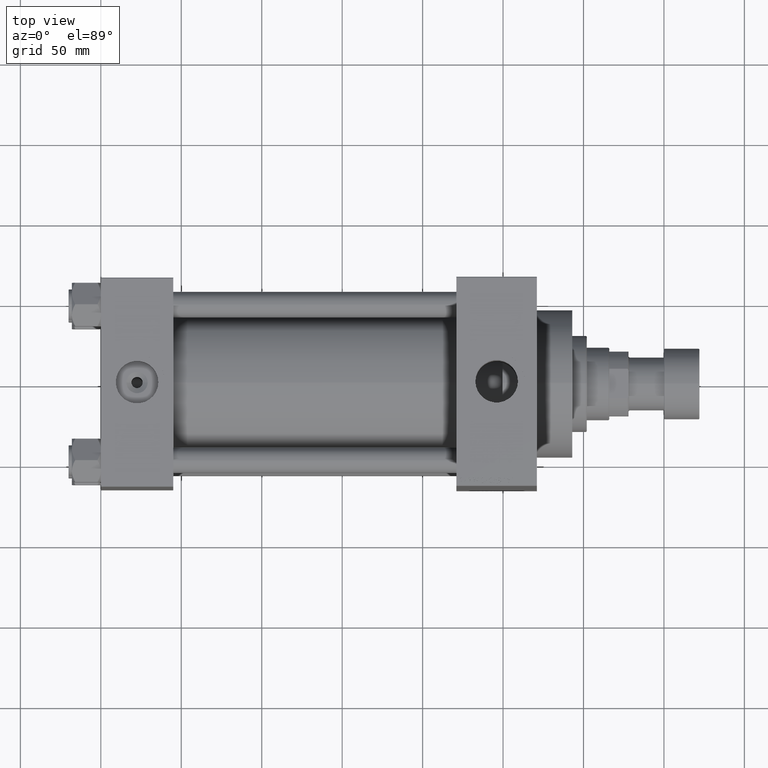
[diagram: clean part render]
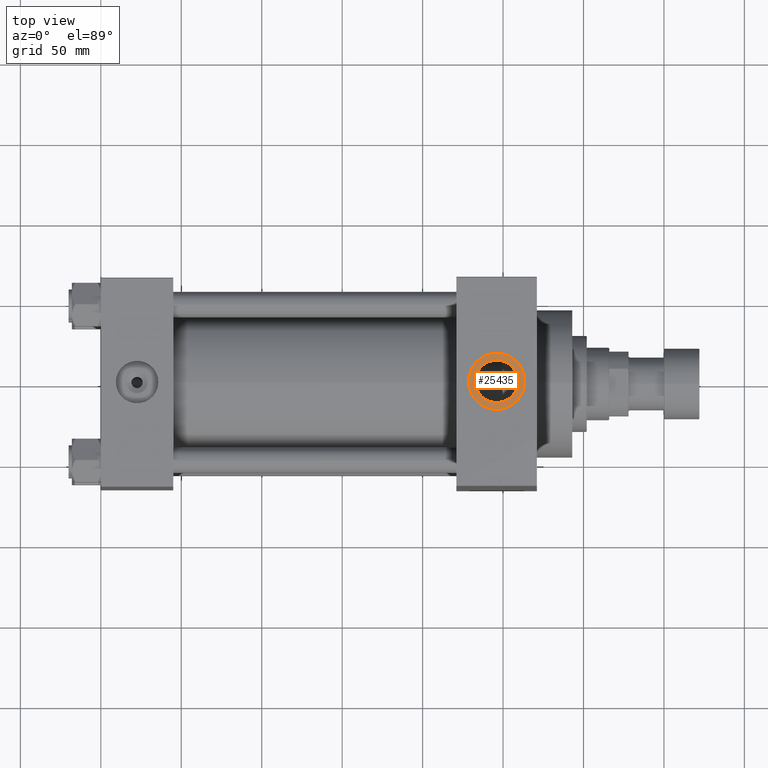
[diagram: same view with one face highlighted and labeled with its STEP entity id]
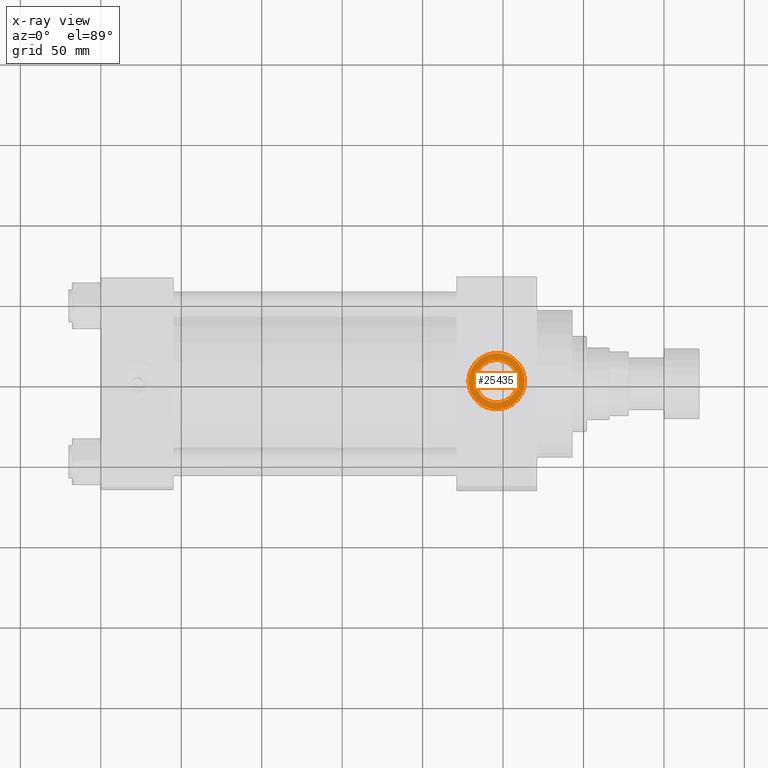
[diagram: x-ray of the same camera — body ghosted, the highlighted face saturated]
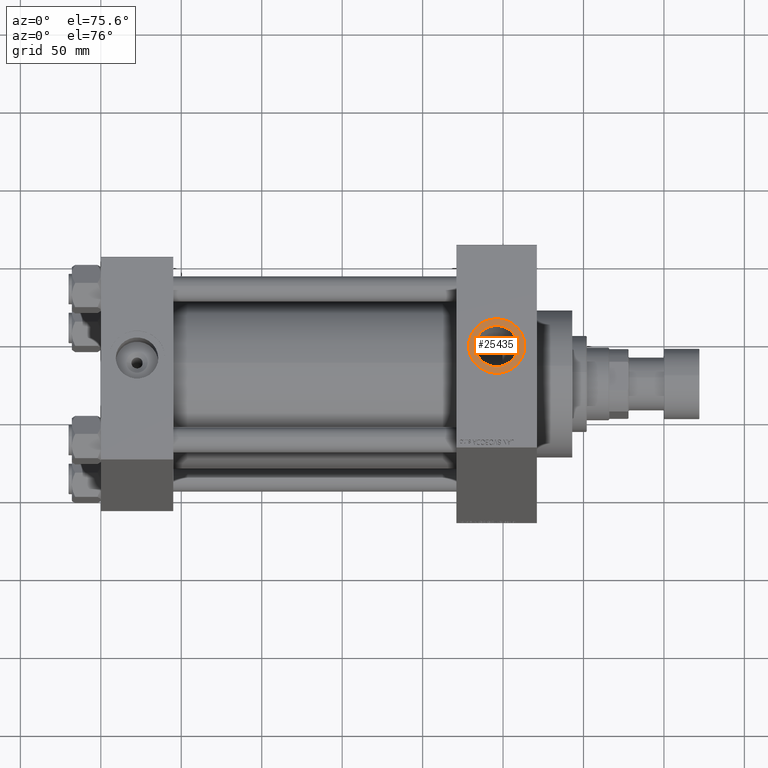
[diagram: same view with one face highlighted and labeled with its STEP entity id]
A machine part, top view. The second image highlights one B-rep face of the part: STEP entity #25435.
The next image is the same camera in x-ray: the body ghosted, the highlighted face saturated — about 0% of this face is hidden behind the body in this view.
A second angle (auxiliary view) of the same face is appended — the face is thin or edge-on in the first view.
In plain terms, the highlighted planar face has unit normal (0, 0, 1).
Its self-contained STEP definition (entity closure, byte-faithful):
#192 = DIRECTION ( 'NONE',  ( 1.000000000000000000, 0.000000000000000000, -0.000000000000000000 ) ) ;
#1902 = DIRECTION ( 'NONE',  ( 0.000000000000000000, 0.000000000000000000, 1.000000000000000000 ) ) ;
#2725 = EDGE_CURVE ( 'NONE', #15401, #28151, #6635, .T. ) ;
#4096 = ORIENTED_EDGE ( 'NONE', *, *, #8728, .T. ) ;
#6635 = CIRCLE ( 'NONE', #11401, 13.22000000000000952 ) ;
#6782 = FACE_OUTER_BOUND ( 'NONE', #48067, .T. ) ;
#7407 = CARTESIAN_POINT ( 'NONE',  ( 245.9999999999999432, -1.014146032109517921E-14, 94.79999999999999716 ) ) ;
#8728 = EDGE_CURVE ( 'NONE', #47634, #23483, #30633, .T. ) ;
#10096 = EDGE_CURVE ( 'NONE', #28151, #15401, #43789, .T. ) ;
#10671 = PLANE ( 'NONE',  #11528 ) ;
#11401 = AXIS2_PLACEMENT_3D ( 'NONE', #31337, #24038, #12606 ) ;
#11528 = AXIS2_PLACEMENT_3D ( 'NONE', #29405, #21624, #192 ) ;
#11679 = DIRECTION ( 'NONE',  ( -0.000000000000000000, -0.000000000000000000, -1.000000000000000000 ) ) ;
#12495 = CARTESIAN_POINT ( 'NONE',  ( 232.7799999999999727, -1.014146032109517921E-14, 94.79999999999999716 ) ) ;
#12606 = DIRECTION ( 'NONE',  ( 1.000000000000000000, 0.000000000000000000, 0.000000000000000000 ) ) ;
#13128 = EDGE_LOOP ( 'NONE', ( #13143, #47294 ) ) ;
#13143 = ORIENTED_EDGE ( 'NONE', *, *, #2725, .T. ) ;
#13571 = CARTESIAN_POINT ( 'NONE',  ( 245.9999999999999432, -1.014146032109517921E-14, 94.79999999999999716 ) ) ;
#15401 = VERTEX_POINT ( 'NONE', #12495 ) ;
#15574 = DIRECTION ( 'NONE',  ( 1.000000000000000000, 0.000000000000000000, 0.000000000000000000 ) ) ;
#17309 = CARTESIAN_POINT ( 'NONE',  ( 259.2199999999999704, -8.522477252622383579E-15, 94.79999999999999716 ) ) ;
#18596 = ORIENTED_EDGE ( 'NONE', *, *, #20021, .T. ) ;
#20021 = EDGE_CURVE ( 'NONE', #23483, #47634, #43334, .T. ) ;
#21624 = DIRECTION ( 'NONE',  ( 0.000000000000000000, 0.000000000000000000, 1.000000000000000000 ) ) ;
#23483 = VERTEX_POINT ( 'NONE', #42372 ) ;
#24038 = DIRECTION ( 'NONE',  ( -0.000000000000000000, -0.000000000000000000, -1.000000000000000000 ) ) ;
#25435 = ADVANCED_FACE ( 'NONE', ( #44469, #6782 ), #10671, .T. ) ;
#26030 = CARTESIAN_POINT ( 'NONE',  ( 245.9999999999999432, -1.014146032109517921E-14, 94.79999999999999716 ) ) ;
#28151 = VERTEX_POINT ( 'NONE', #17309 ) ;
#28418 = DIRECTION ( 'NONE',  ( 1.000000000000000000, 0.000000000000000000, 0.000000000000000000 ) ) ;
#29405 = CARTESIAN_POINT ( 'NONE',  ( 245.9999999999999432, -1.014146032109517921E-14, 94.79999999999999716 ) ) ;
#30270 = DIRECTION ( 'NONE',  ( 1.000000000000000000, 0.000000000000000000, 0.000000000000000000 ) ) ;
#30633 = CIRCLE ( 'NONE', #36830, 17.50000000000001421 ) ;
#31337 = CARTESIAN_POINT ( 'NONE',  ( 245.9999999999999432, -1.014146032109517921E-14, 94.79999999999999716 ) ) ;
#33674 = AXIS2_PLACEMENT_3D ( 'NONE', #26030, #11679, #15574 ) ;
#33913 = DIRECTION ( 'NONE',  ( 0.000000000000000000, 0.000000000000000000, 1.000000000000000000 ) ) ;
#36830 = AXIS2_PLACEMENT_3D ( 'NONE', #7407, #33913, #30270 ) ;
#41758 = AXIS2_PLACEMENT_3D ( 'NONE', #13571, #1902, #28418 ) ;
#42372 = CARTESIAN_POINT ( 'NONE',  ( 263.4999999999999432, -1.014146032109517921E-14, 94.79999999999999716 ) ) ;
#43334 = CIRCLE ( 'NONE', #41758, 17.50000000000001421 ) ;
#43789 = CIRCLE ( 'NONE', #33674, 13.22000000000000952 ) ;
#44469 = FACE_BOUND ( 'NONE', #13128, .T. ) ;
#47294 = ORIENTED_EDGE ( 'NONE', *, *, #10096, .T. ) ;
#47535 = CARTESIAN_POINT ( 'NONE',  ( 228.4999999999999432, -7.998328422587310960E-15, 94.79999999999999716 ) ) ;
#47634 = VERTEX_POINT ( 'NONE', #47535 ) ;
#48067 = EDGE_LOOP ( 'NONE', ( #18596, #4096 ) ) ;